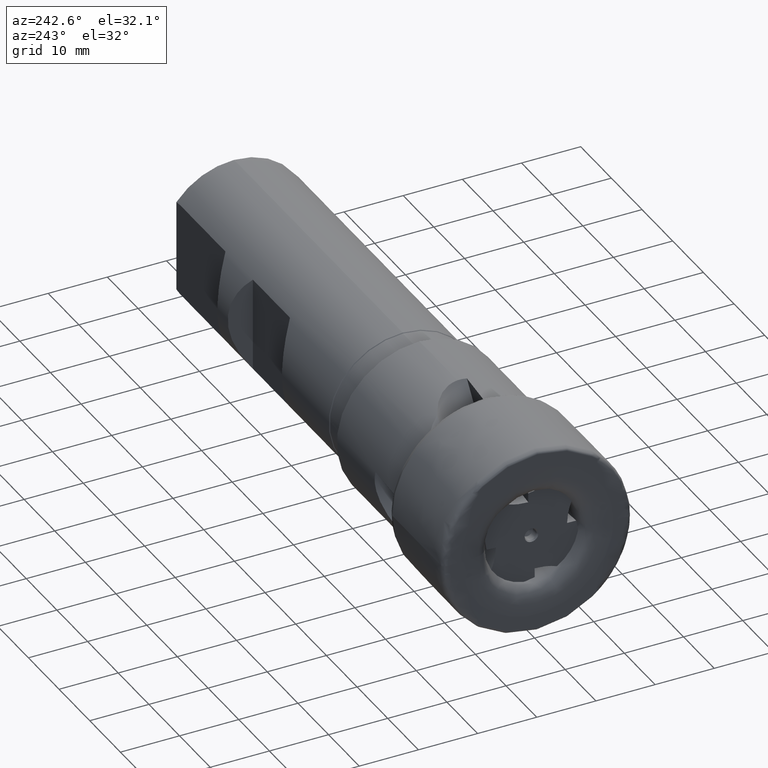
[diagram: clean part render]
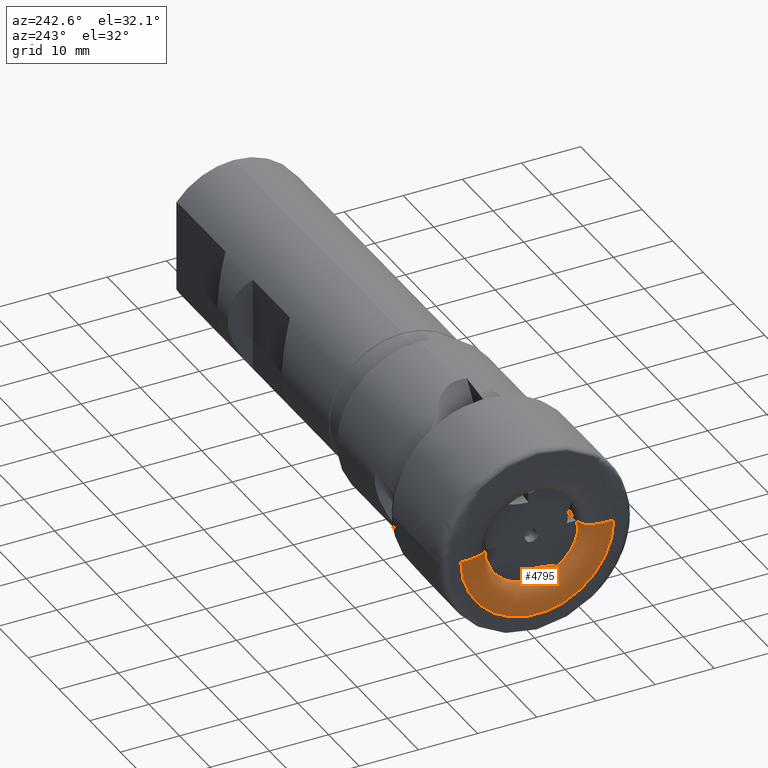
[diagram: same view with one face highlighted and labeled with its STEP entity id]
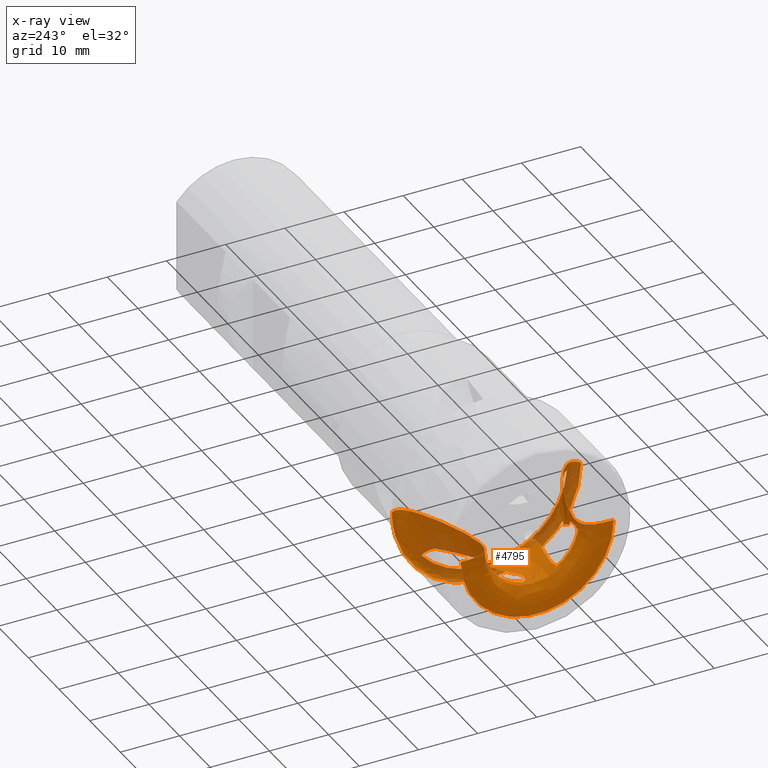
[diagram: x-ray of the same camera — body ghosted, the highlighted face saturated]
A machine part, auxiliary view. The second image highlights one B-rep face of the part: STEP entity #4795.
The next image is the same camera in x-ray: the body ghosted, the highlighted face saturated — about 19% of this face is hidden behind the body in this view.
In plain terms, the highlighted face is a freeform B-spline surface patch.
Its self-contained STEP definition (entity closure, byte-faithful):
#3 = B_SPLINE_CURVE_WITH_KNOTS ( 'NONE', 3,
 ( #1766, #1794, #1788, #1786, #1783, #1779, #1793, #1791, #1785, #1765 ),
 .UNSPECIFIED., .F., .F.,
 ( 4, 2, 2, 2, 4 ),
 ( 3.696389960674472100E-005, 0.0004241432186873470200, 0.0008113225377679492700, 0.001198501856848550700, 0.001585681175929152100 ),
 .UNSPECIFIED. ) ;
#4 = B_SPLINE_CURVE_WITH_KNOTS ( 'NONE', 3,
 ( #1676, #1660, #1740, #1735, #1733, #1755, #1752, #1805, #1787, #1798, #1741, #1728 ),
 .UNSPECIFIED., .F., .F.,
 ( 4, 2, 2, 2, 2, 4 ),
 ( 0.001695614027057323400, 0.002424153440067413100, 0.003152692853077503100, 0.004609771679097678600, 0.006066850505117854200, 0.007523929331138030600 ),
 .UNSPECIFIED. ) ;
#5 = B_SPLINE_CURVE_WITH_KNOTS ( 'NONE', 3,
 ( #1721, #1790, #1753, #1770, #1652, #1672, #1699, #1674, #1714, #1722, #1655, #1690, #1691, #1651, #1650, #1683 ),
 .UNSPECIFIED., .F., .F.,
 ( 4, 2, 2, 2, 2, 2, 2, 4 ),
 ( 0.001459482907623671500, 0.002005278338026185300, 0.002551073768428699200, 0.003642664629233727100, 0.004734255490038754100, 0.005825846350843782000, 0.008009028072453837700, 0.01019220979406389500 ),
 .UNSPECIFIED. ) ;
#8 = B_SPLINE_CURVE_WITH_KNOTS ( 'NONE', 3,
 ( #1718, #1645, #1644, #1698, #1687, #1712 ),
 .UNSPECIFIED., .F., .F.,
 ( 4, 2, 4 ),
 ( 0.002813665986414795200, 0.003086484294169958800, 0.003359302601925121900 ),
 .UNSPECIFIED. ) ;
#9 = B_SPLINE_CURVE_WITH_KNOTS ( 'NONE', 3,
 ( #1743, #1685, #1763, #1663, #1669, #1679 ),
 .UNSPECIFIED., .F., .F.,
 ( 4, 2, 4 ),
 ( 3.572740805686674300E-016, 0.002368259885442461700, 0.004736519770884566000 ),
 .UNSPECIFIED. ) ;
#13 = B_SPLINE_CURVE_WITH_KNOTS ( 'NONE', 3,
 ( #1801, #1697, #1806, #1780 ),
 .UNSPECIFIED., .F., .F.,
 ( 4, 4 ),
 ( 0.001585681175929152100, 0.001648896588528597300 ),
 .UNSPECIFIED. ) ;
#14 = B_SPLINE_CURVE_WITH_KNOTS ( 'NONE', 3,
 ( #3805, #3821, #3810, #3815, #3783, #3818 ),
 .UNSPECIFIED., .F., .F.,
 ( 4, 2, 4 ),
 ( 9.345383159293372200E-015, 0.002368259885446957700, 0.004736519770884569500 ),
 .UNSPECIFIED. ) ;
#15 = B_SPLINE_CURVE_WITH_KNOTS ( 'NONE', 3,
 ( #1762, #1764, #1797, #1802, #1799, #1803 ),
 .UNSPECIFIED., .F., .F.,
 ( 4, 2, 4 ),
 ( 7.350083589378113800E-005, 0.002127332326898164800, 0.004181163817902551100 ),
 .UNSPECIFIED. ) ;
#17 = B_SPLINE_CURVE_WITH_KNOTS ( 'NONE', 3,
 ( #1773, #1649, #1696, #1731, #1782, #1656, #1717, #1689 ),
 .UNSPECIFIED., .F., .F.,
 ( 4, 2, 2, 4 ),
 ( 0.003118339040815145000, 0.004084315830625417200, 0.005050292620435692900, 0.006982246200056246900 ),
 .UNSPECIFIED. ) ;
#21 = B_SPLINE_CURVE_WITH_KNOTS ( 'NONE', 3,
 ( #1693, #1738, #1659, #1796 ),
 .UNSPECIFIED., .F., .F.,
 ( 4, 4 ),
 ( 0.0000000000000000000, 0.0004602060734518489900 ),
 .UNSPECIFIED. ) ;
#22 = B_SPLINE_CURVE_WITH_KNOTS ( 'NONE', 3,
 ( #3794, #3819, #3813, #3822, #3809, #3800, #3773, #3778, #3787, #3786, #3791, #3795, #3798, #3808, #3788, #3785 ),
 .UNSPECIFIED., .F., .F.,
 ( 4, 2, 2, 2, 2, 2, 2, 4 ),
 ( 0.001459482907623683000, 0.002005278338026197000, 0.002551073768428710900, 0.003642664629233738800, 0.004734255490038766200, 0.005825846350843794100, 0.008009028072453849800, 0.01019220979406390700 ),
 .UNSPECIFIED. ) ;
#23 =( BOUNDED_CURVE ( )  B_SPLINE_CURVE ( 3, ( #3081, #3765, #3762, #3771, #3770, #3769, #3767, #3766, #3829 ),
 .UNSPECIFIED., .F., .T. ) 
 B_SPLINE_CURVE_WITH_KNOTS ( ( 4, 3, 1, 1, 4 ),
 ( 0.4999999999999998300, 0.5374124429672690900, 0.6916082953115126900, 0.8458041476557565100, 1.000000000000000000 ),
 .UNSPECIFIED. ) 
 CURVE ( )  GEOMETRIC_REPRESENTATION_ITEM ( )  RATIONAL_B_SPLINE_CURVE ( ( 0.9905340244787608200, 0.8371696116770038800, 0.8403249368507502700, 1.000000000000000000, 1.000000000000000000, 1.000000000000000000, 1.000000000000000000, 1.000000000000000000, 1.000000000000000000 ) ) 
 REPRESENTATION_ITEM ( '' )  );
#26 = B_SPLINE_CURVE_WITH_KNOTS ( 'NONE', 3,
 ( #1711, #1778, #1792, #1678 ),
 .UNSPECIFIED., .F., .F.,
 ( 4, 4 ),
 ( 0.002706554292148836700, 0.003950145044846595600 ),
 .UNSPECIFIED. ) ;
#29 = B_SPLINE_CURVE_WITH_KNOTS ( 'NONE', 3,
 ( #5731, #5783, #5809, #5869, #5819, #5795, #5833, #1707, #1642, #1688, #1643, #1666 ),
 .UNSPECIFIED., .F., .F.,
 ( 4, 2, 2, 2, 2, 4 ),
 ( 8.683664881434645300E-005, 0.0007108188029513063500, 0.001334800957088266200, 0.001646792034156745600, 0.001958783111225224700, 0.002582765265362183100 ),
 .UNSPECIFIED. ) ;
#30 = B_SPLINE_CURVE_WITH_KNOTS ( 'NONE', 3,
 ( #5547, #5509, #5548, #5546, #5543, #5541, #5540, #5528 ),
 .UNSPECIFIED., .F., .F.,
 ( 4, 2, 2, 4 ),
 ( 0.0002914772496509638600, 0.0007541557286104979500, 0.001216834207570032100, 0.002142191165489101900 ),
 .UNSPECIFIED. ) ;
#39 = B_SPLINE_CURVE_WITH_KNOTS ( 'NONE', 3,
 ( #1769, #1795, #1709, #1767 ),
 .UNSPECIFIED., .F., .F.,
 ( 4, 4 ),
 ( 0.003681822430684622500, 0.005338997128617969400 ),
 .UNSPECIFIED. ) ;
#41 = B_SPLINE_CURVE_WITH_KNOTS ( 'NONE', 3,
 ( #1677, #1646, #1708, #1658, #1725, #1704 ),
 .UNSPECIFIED., .F., .F.,
 ( 4, 2, 4 ),
 ( 0.003764476278825431200, 0.004597277886860119500, 0.005430079494894807400 ),
 .UNSPECIFIED. ) ;
#70 = EDGE_LOOP ( 'NONE', ( #5357, #5342, #5290, #5281, #5327, #5323, #5275, #5277, #5298, #5310, #5344, #5345, #5346, #5267, #5262, #5304, #5292, #5297 ) ) ;
#196 = CIRCLE ( 'NONE', #4655, 14.00000000000000000 ) ;
#200 = CIRCLE ( 'NONE', #4659, 7.986440137444374100 ) ;
#205 = CIRCLE ( 'NONE', #4661, 7.986440137444374100 ) ;
#1642 = CARTESIAN_POINT ( 'NONE',  ( 1.906165339882337100, -7.794542437987201000, -0.9038683548771031500 ) ) ;
#1643 = CARTESIAN_POINT ( 'NONE',  ( 1.406626987787355200, -7.821282960621283000, -1.054608241863550500 ) ) ;
#1644 = CARTESIAN_POINT ( 'NONE',  ( 9.795127822885639500, -9.262106075405650800, -3.670359644845549800 ) ) ;
#1645 = CARTESIAN_POINT ( 'NONE',  ( 9.877139531221352800, -9.286699370879279800, -3.700064216685750000 ) ) ;
#1646 = CARTESIAN_POINT ( 'NONE',  ( 9.944786059326506900, -9.206983293434792200, -3.975815873334451300 ) ) ;
#1649 = CARTESIAN_POINT ( 'NONE',  ( 16.20556702002544800, 10.58134357214866300, -8.822539238722594500 ) ) ;
#1650 = CARTESIAN_POINT ( 'NONE',  ( 8.675083368943617800, 7.831417433516723000, -5.398720048212682700 ) ) ;
#1651 = CARTESIAN_POINT ( 'NONE',  ( 8.000000358855277900, 7.658495359194434500, -5.201941911789555600 ) ) ;
#1652 = CARTESIAN_POINT ( 'NONE',  ( 1.886965584084154400, 6.752916393983394300, -3.993917235771486100 ) ) ;
#1655 = CARTESIAN_POINT ( 'NONE',  ( 4.916691766964939700, 7.030072408021109000, -4.358644458714529400 ) ) ;
#1656 = CARTESIAN_POINT ( 'NONE',  ( 14.66005063134746100, 10.05440645365803400, -7.299552367996490400 ) ) ;
#1658 = CARTESIAN_POINT ( 'NONE',  ( 9.733962755520984400, -8.771637415552127900, -4.678589722952730200 ) ) ;
#1659 = CARTESIAN_POINT ( 'NONE',  ( 1.155625834011727600, -7.837953251589386400, -1.301521394099550000 ) ) ;
#1660 = CARTESIAN_POINT ( 'NONE',  ( 16.21784035497658400, 0.7866954455813159900, -13.77220418627727100 ) ) ;
#1662 = CARTESIAN_POINT ( 'NONE',  ( 16.35082059415270800, 0.0000000000000000000, 0.0000000000000000000 ) ) ;
#1663 = CARTESIAN_POINT ( 'NONE',  ( 10.81024475476628600, 8.482316226237811600, -5.994720712376315300 ) ) ;
#1666 = CARTESIAN_POINT ( 'NONE',  ( 1.232887749916024000, -7.841300139547233700, -1.168630262438838500 ) ) ;
#1669 = CARTESIAN_POINT ( 'NONE',  ( 10.08310654343256700, 8.232161918622415100, -5.809627812334068300 ) ) ;
#1672 = CARTESIAN_POINT ( 'NONE',  ( 2.434869936539695500, 6.761062987043778200, -3.967939254815660000 ) ) ;
#1674 = CARTESIAN_POINT ( 'NONE',  ( 3.511668857989276300, 6.843576710799771600, -4.073125936140160200 ) ) ;
#1676 = CARTESIAN_POINT ( 'NONE',  ( 16.35082059415270800, 0.7983297089821997900, -13.97721966900987100 ) ) ;
#1677 = CARTESIAN_POINT ( 'NONE',  ( 9.961858758386542300, -9.317228335800678000, -3.718790766092941300 ) ) ;
#1678 = CARTESIAN_POINT ( 'NONE',  ( 5.623905422683043800, -7.878803517215631700, -3.109665431587843800 ) ) ;
#1679 = CARTESIAN_POINT ( 'NONE',  ( 9.346339155191316200, 8.022466884483098000, -5.594614703413014900 ) ) ;
#1681 = DIRECTION ( 'NONE',  ( 0.0000000000000000000, 0.0000000000000000000, 1.000000000000000000 ) ) ;
#1683 = CARTESIAN_POINT ( 'NONE',  ( 9.346339155191316200, 8.022466884483098000, -5.594614703413014900 ) ) ;
#1685 = CARTESIAN_POINT ( 'NONE',  ( 12.94330843479046700, 9.398962272422100000, -6.464646237600317300 ) ) ;
#1687 = CARTESIAN_POINT ( 'NONE',  ( 9.561391576930319000, -9.212648001796653200, -3.534445269104261800 ) ) ;
#1688 = CARTESIAN_POINT ( 'NONE',  ( 1.601573669215425200, -7.805989385427900600, -0.9678602817202837100 ) ) ;
#1689 = CARTESIAN_POINT ( 'NONE',  ( 13.62731220597918200, 9.783410505144665600, -6.598092078970812400 ) ) ;
#1690 = CARTESIAN_POINT ( 'NONE',  ( 5.957532790907008800, 7.206828936093233800, -4.619265667843197100 ) ) ;
#1691 = CARTESIAN_POINT ( 'NONE',  ( 6.641262659919320300, 7.345984573493438100, -4.812254378706336800 ) ) ;
#1693 = CARTESIAN_POINT ( 'NONE',  ( 1.000000000000000000, -7.831250987378521000, -1.566759088585529100 ) ) ;
#1696 = CARTESIAN_POINT ( 'NONE',  ( 16.01851577236773800, 10.51149209904923200, -8.569633307122563400 ) ) ;
#1697 = CARTESIAN_POINT ( 'NONE',  ( 4.621229542472014500, -7.865484113142988700, -2.318288295409047800 ) ) ;
#1698 = CARTESIAN_POINT ( 'NONE',  ( 9.637010727110784100, -9.224925359836071000, -3.587673426509182300 ) ) ;
#1699 = CARTESIAN_POINT ( 'NONE',  ( 2.797666934601923800, 6.782609225965211800, -3.990300048969163300 ) ) ;
#1703 = DIRECTION ( 'NONE',  ( 1.000000000000000000, 0.0000000000000000000, 0.0000000000000000000 ) ) ;
#1704 = CARTESIAN_POINT ( 'NONE',  ( 9.582609126359681500, -8.446890704283315900, -5.116961288114184800 ) ) ;
#1707 = CARTESIAN_POINT ( 'NONE',  ( 2.011668578813153200, -7.792525863732714200, -0.8929013161903106600 ) ) ;
#1708 = CARTESIAN_POINT ( 'NONE',  ( 9.876542173941528400, -9.067054642976813700, -4.217983015829434900 ) ) ;
#1709 = CARTESIAN_POINT ( 'NONE',  ( 11.43302409475034600, 0.8870847868606146500, -10.65139429608753100 ) ) ;
#1711 = CARTESIAN_POINT ( 'NONE',  ( 4.662393956077301600, -7.876512075273336900, -2.316552428874413000 ) ) ;
#1712 = CARTESIAN_POINT ( 'NONE',  ( 9.494010205241842500, -9.207277102033979000, -3.471495896194975100 ) ) ;
#1714 = CARTESIAN_POINT ( 'NONE',  ( 3.864942367450184200, 6.883409024551517600, -4.134258996294867000 ) ) ;
#1717 = CARTESIAN_POINT ( 'NONE',  ( 14.14757574892707700, 9.908342048485145900, -6.947934471836404700 ) ) ;
#1718 = CARTESIAN_POINT ( 'NONE',  ( 9.961858758386542300, -9.317228335800678000, -3.718790766092941300 ) ) ;
#1719 = DIRECTION ( 'NONE',  ( 0.0000000000000000000, -1.776356839400250500E-015, 1.000000000000000000 ) ) ;
#1721 = CARTESIAN_POINT ( 'NONE',  ( 0.9999999999999950000, 6.801715402263384100, -4.185677203941503800 ) ) ;
#1722 = CARTESIAN_POINT ( 'NONE',  ( 4.567256134231514300, 6.976572394314541900, -4.276842875398895800 ) ) ;
#1725 = CARTESIAN_POINT ( 'NONE',  ( 9.656533617623615800, -8.613445388822809100, -4.900013537799639000 ) ) ;
#1728 = CARTESIAN_POINT ( 'NONE',  ( 11.63658361730729100, 0.3858874163334726800, -10.76511612045552700 ) ) ;
#1729 = DIRECTION ( 'NONE',  ( 1.000000000000000000, 0.0000000000000000000, 0.0000000000000000000 ) ) ;
#1731 = CARTESIAN_POINT ( 'NONE',  ( 15.59956464288674200, 10.36205447104710400, -8.103108731121176700 ) ) ;
#1733 = CARTESIAN_POINT ( 'NONE',  ( 15.53871772960319400, 0.7272799147171764600, -13.08485413658418900 ) ) ;
#1735 = CARTESIAN_POINT ( 'NONE',  ( 15.72160496527989400, 0.7432804745424953500, -13.24576967196384400 ) ) ;
#1738 = CARTESIAN_POINT ( 'NONE',  ( 1.077234844022652000, -7.834597666812178400, -1.433854578999600400 ) ) ;
#1740 = CARTESIAN_POINT ( 'NONE',  ( 16.06041003617344400, 0.7729220773907807800, -13.58945681742071300 ) ) ;
#1741 = CARTESIAN_POINT ( 'NONE',  ( 12.07128493366939100, 0.4239188535349544000, -10.96823944706111400 ) ) ;
#1743 = CARTESIAN_POINT ( 'NONE',  ( 13.62731220597918200, 9.783410505144665600, -6.598092078970812400 ) ) ;
#1752 = CARTESIAN_POINT ( 'NONE',  ( 14.57928413273223900, 0.6433403515850656400, -12.36278524797339000 ) ) ;
#1753 = CARTESIAN_POINT ( 'NONE',  ( 1.348828362107482600, 6.768415720083229600, -4.076772692433548800 ) ) ;
#1755 = CARTESIAN_POINT ( 'NONE',  ( 14.97565566200832900, 0.6780183669411549200, -12.63079233356369700 ) ) ;
#1762 = CARTESIAN_POINT ( 'NONE',  ( 9.494010205241842500, -9.207277102033979000, -3.471495896194975100 ) ) ;
#1763 = CARTESIAN_POINT ( 'NONE',  ( 12.24009413570976800, 9.066111735760484800, -6.322609388863122100 ) ) ;
#1764 = CARTESIAN_POINT ( 'NONE',  ( 8.859134111370345000, -8.955645509489571100, -3.411550728472654700 ) ) ;
#1765 = CARTESIAN_POINT ( 'NONE',  ( 4.600659726344105100, -7.860309510885248800, -2.318205059195970200 ) ) ;
#1766 = CARTESIAN_POINT ( 'NONE',  ( 3.596196646526608600, -7.869895641575489300, -1.346941464099033800 ) ) ;
#1767 = CARTESIAN_POINT ( 'NONE',  ( 11.63658361730729100, 0.3858874163334726800, -10.76511612045552700 ) ) ;
#1769 = CARTESIAN_POINT ( 'NONE',  ( 11.03198719069120800, 1.859357598834422000, -10.32839534769507100 ) ) ;
#1770 = CARTESIAN_POINT ( 'NONE',  ( 1.706052860641938700, 6.754349810747996200, -4.012608673255992500 ) ) ;
#1773 = CARTESIAN_POINT ( 'NONE',  ( 16.35082059415277600, 10.63530775963411300, -9.104407111825967300 ) ) ;
#1778 = CARTESIAN_POINT ( 'NONE',  ( 4.976619063714228000, -7.877053785878162600, -2.588621787787774900 ) ) ;
#1779 = CARTESIAN_POINT ( 'NONE',  ( 3.996407066364124900, -7.775051467065803300, -2.124189888067950200 ) ) ;
#1780 = CARTESIAN_POINT ( 'NONE',  ( 4.662393956077301600, -7.876512075273336900, -2.316552428874413000 ) ) ;
#1782 = CARTESIAN_POINT ( 'NONE',  ( 15.37193568958516500, 10.28397488516310100, -7.893651259229034000 ) ) ;
#1783 = CARTESIAN_POINT ( 'NONE',  ( 3.810738691242361800, -7.784111130501169200, -1.945028498303698900 ) ) ;
#1785 = CARTESIAN_POINT ( 'NONE',  ( 4.474674510484153900, -7.828616306707978400, -2.317695257250889500 ) ) ;
#1786 = CARTESIAN_POINT ( 'NONE',  ( 3.734938858961169800, -7.796400997035495300, -1.836842347434446000 ) ) ;
#1787 = CARTESIAN_POINT ( 'NONE',  ( 13.34957880853771300, 0.5357550762405629600, -11.62584703057307100 ) ) ;
#1788 = CARTESIAN_POINT ( 'NONE',  ( 3.630264351908232300, -7.828773915436345400, -1.602132012986942500 ) ) ;
#1790 = CARTESIAN_POINT ( 'NONE',  ( 1.170854201105921100, 6.781199074059952800, -4.122817899761357400 ) ) ;
#1791 = CARTESIAN_POINT ( 'NONE',  ( 4.346258161361125100, -7.805130857161768400, -2.292821081383053600 ) ) ;
#1792 = CARTESIAN_POINT ( 'NONE',  ( 5.297926862208755400, -7.877846039732556700, -2.852007030020294200 ) ) ;
#1793 = CARTESIAN_POINT ( 'NONE',  ( 4.108152741927319200, -7.778470445418705000, -2.196601487983656400 ) ) ;
#1794 = CARTESIAN_POINT ( 'NONE',  ( 3.600814584729189700, -7.848735959159755600, -1.475305090125832700 ) ) ;
#1795 = CARTESIAN_POINT ( 'NONE',  ( 11.22700391151090400, 1.376001839079052300, -10.50432245680715600 ) ) ;
#1796 = CARTESIAN_POINT ( 'NONE',  ( 1.232887749916024000, -7.841300139547233700, -1.168630262438838500 ) ) ;
#1797 = CARTESIAN_POINT ( 'NONE',  ( 8.219559493730317400, -8.718014612547202400, -3.351438813618939200 ) ) ;
#1798 = CARTESIAN_POINT ( 'NONE',  ( 12.50223254737841400, 0.4616218843080440200, -11.18007386308366000 ) ) ;
#1799 = CARTESIAN_POINT ( 'NONE',  ( 6.281754029132023300, -8.061981448215041400, -3.170425876780703400 ) ) ;
#1801 = CARTESIAN_POINT ( 'NONE',  ( 4.600659726344105100, -7.860309510885248800, -2.318205059195970200 ) ) ;
#1802 = CARTESIAN_POINT ( 'NONE',  ( 6.930931609798135700, -8.270997365468087300, -3.230878593685528400 ) ) ;
#1803 = CARTESIAN_POINT ( 'NONE',  ( 5.623905422683043800, -7.878803517215631700, -3.109665431587843800 ) ) ;
#1805 = CARTESIAN_POINT ( 'NONE',  ( 13.76657118348292000, 0.5722371818250269200, -11.85977469002547100 ) ) ;
#1806 = CARTESIAN_POINT ( 'NONE',  ( 4.641807412788431000, -7.870885092742958600, -2.317739368806494700 ) ) ;
#1808 = CARTESIAN_POINT ( 'NONE',  ( 0.9999999999999983300, 0.0000000000000000000, 0.0000000000000000000 ) ) ;
#2422 = AXIS2_PLACEMENT_3D ( 'NONE', #3277, #3278, #3279 ) ;
#2428 = AXIS2_PLACEMENT_3D ( 'NONE', #3476, #3477, #3478 ) ;
#2432 = AXIS2_PLACEMENT_3D ( 'NONE', #3518, #3519, #3520 ) ;
#2544 = FACE_OUTER_BOUND ( 'NONE', #3759, .T. ) ;
#2549 = FACE_BOUND ( 'NONE', #70, .T. ) ;
#2554 = FACE_BOUND ( 'NONE', #3745, .T. ) ;
#2562 = CIRCLE ( 'NONE', #2422, 15.95837609584169100 ) ;
#2581 = CIRCLE ( 'NONE', #2428, 12.93071601396393400 ) ;
#2594 = CIRCLE ( 'NONE', #2432, 14.00000000000000000 ) ;
#2797 = CARTESIAN_POINT ( 'NONE',  ( 15.61958193997870300, 15.95837609584169500, 1.954337420536217000E-015 ) ) ;
#2803 = CARTESIAN_POINT ( 'NONE',  ( 15.61958193997870300, 15.95837609584170000, -31.91675219168338600 ) ) ;
#2804 = CARTESIAN_POINT ( 'NONE',  ( 15.61958193997870300, -15.95837609584169000, -31.91675219168339000 ) ) ;
#2805 = CARTESIAN_POINT ( 'NONE',  ( 15.61958193997870300, -15.95837609584169500, -3.908674841072434700E-015 ) ) ;
#2806 = CARTESIAN_POINT ( 'NONE',  ( 16.19201686794975700, 15.90963096352389000, 1.948367863509515700E-015 ) ) ;
#2807 = CARTESIAN_POINT ( 'NONE',  ( 16.19201686794975700, 15.90963096352389500, -31.81926192704776600 ) ) ;
#2808 = CARTESIAN_POINT ( 'NONE',  ( 16.19201686794975700, -15.90963096352388300, -31.81926192704777300 ) ) ;
#2809 = CARTESIAN_POINT ( 'NONE',  ( 16.19201686794975700, -15.90963096352389000, -3.896735727019031400E-015 ) ) ;
#2810 = CARTESIAN_POINT ( 'NONE',  ( 16.59424611425123800, 15.50738991509868300, 1.899107542265554700E-015 ) ) ;
#2811 = CARTESIAN_POINT ( 'NONE',  ( 16.59424611425123400, 15.50738991509868600, -31.01477983019735500 ) ) ;
#2812 = CARTESIAN_POINT ( 'NONE',  ( 16.59424611425123400, -15.50738991509867800, -31.01477983019736200 ) ) ;
#2813 = CARTESIAN_POINT ( 'NONE',  ( 16.59424611425123800, -15.50738991509868300, -3.798215084531109500E-015 ) ) ;
#2814 = CARTESIAN_POINT ( 'NONE',  ( 16.63901039298782100, 14.94387512476231400, 1.830096883839792000E-015 ) ) ;
#2815 = CARTESIAN_POINT ( 'NONE',  ( 16.63901039298782100, 14.94387512476231600, -29.88775024952461500 ) ) ;
#2816 = CARTESIAN_POINT ( 'NONE',  ( 16.63901039298782100, -14.94387512476230600, -29.88775024952462200 ) ) ;
#2817 = CARTESIAN_POINT ( 'NONE',  ( 16.63901039298782100, -14.94387512476231400, -3.660193767679583900E-015 ) ) ;
#2818 = CARTESIAN_POINT ( 'NONE',  ( 16.79404743258294600, 12.99219250353847400, 1.591084696336463100E-015 ) ) ;
#2819 = CARTESIAN_POINT ( 'NONE',  ( 16.79404743258294300, 12.99219250353848000, -25.98438500707694100 ) ) ;
#2820 = CARTESIAN_POINT ( 'NONE',  ( 16.79404743258294300, -12.99219250353846900, -25.98438500707694800 ) ) ;
#2821 = CARTESIAN_POINT ( 'NONE',  ( 16.79404743258294600, -12.99219250353847400, -3.182169392672926100E-015 ) ) ;
#2822 = CARTESIAN_POINT ( 'NONE',  ( 6.638849280949029800, 8.257490850354775700, 1.011250973887553100E-015 ) ) ;
#2823 = CARTESIAN_POINT ( 'NONE',  ( 6.638849280949028900, 8.257490850354777500, -16.51498170070954800 ) ) ;
#2824 = CARTESIAN_POINT ( 'NONE',  ( 6.638849280949028900, -8.257490850354772100, -16.51498170070955100 ) ) ;
#2825 = CARTESIAN_POINT ( 'NONE',  ( 6.638849280949029800, -8.257490850354775700, -2.022501947775106200E-015 ) ) ;
#2826 = CARTESIAN_POINT ( 'NONE',  ( -0.7966021102602431900, 7.057634559788922100, 8.643109573197242400E-016 ) ) ;
#2827 = CARTESIAN_POINT ( 'NONE',  ( -0.7966021102602431900, 7.057634559788923800, -14.11526911957784100 ) ) ;
#2828 = CARTESIAN_POINT ( 'NONE',  ( -0.7966021102602431900, -7.057634559788918500, -14.11526911957784200 ) ) ;
#2829 = CARTESIAN_POINT ( 'NONE',  ( -0.7966021102602431900, -7.057634559788922100, -1.728621914639448500E-015 ) ) ;
#2830 = CARTESIAN_POINT ( 'NONE',  ( -0.8429249931477903500, 10.97302219590559400, 1.343807650918864900E-015 ) ) ;
#2831 = CARTESIAN_POINT ( 'NONE',  ( -0.8429249931477903500, 10.97302219590559800, -21.94604439181118500 ) ) ;
#2832 = CARTESIAN_POINT ( 'NONE',  ( -0.8429249931477903500, -10.97302219590559100, -21.94604439181118800 ) ) ;
#2833 = CARTESIAN_POINT ( 'NONE',  ( -0.8429249931477903500, -10.97302219590559400, -2.687615301837729700E-015 ) ) ;
#2834 = CARTESIAN_POINT ( 'NONE',  ( -0.8660864345915640900, 12.93071601396393400, 1.583555997718435400E-015 ) ) ;
#2835 = CARTESIAN_POINT ( 'NONE',  ( -0.8660864345915640900, 12.93071601396393800, -25.86143202792786200 ) ) ;
#2836 = CARTESIAN_POINT ( 'NONE',  ( -0.8660864345915640900, -12.93071601396392700, -25.86143202792786500 ) ) ;
#2837 = CARTESIAN_POINT ( 'NONE',  ( -0.8660864345915640900, -12.93071601396393400, -3.167111995436870700E-015 ) ) ;
#3015 = CARTESIAN_POINT ( 'NONE',  ( 9.346339155191316200, 8.022466884483098000, -5.594614703413014900 ) ) ;
#3016 = CARTESIAN_POINT ( 'NONE',  ( 9.582609126359662000, 4.968763380423003400, -8.534907490039595100 ) ) ;
#3044 = CARTESIAN_POINT ( 'NONE',  ( 16.35082059415277600, 10.63530775963411300, -9.104407111825967300 ) ) ;
#3046 = CARTESIAN_POINT ( 'NONE',  ( 1.000000000000000000, 1.429846288443505500, -7.857401966324926200 ) ) ;
#3048 = CARTESIAN_POINT ( 'NONE',  ( 11.63658361730729100, 0.3858874163334726800, -10.76511612045552700 ) ) ;
#3062 = CARTESIAN_POINT ( 'NONE',  ( 11.01862978513252300, 5.181432630331944900, -9.119211451976749300 ) ) ;
#3072 = CARTESIAN_POINT ( 'NONE',  ( 9.582609126359681500, -8.446890704283315900, -5.116961288114184800 ) ) ;
#3074 = CARTESIAN_POINT ( 'NONE',  ( 3.596196646526608600, -7.869895641575489300, -1.346941464099033800 ) ) ;
#3076 = CARTESIAN_POINT ( 'NONE',  ( 5.623905422683043800, -7.878803517215631700, -3.109665431587843800 ) ) ;
#3078 = CARTESIAN_POINT ( 'NONE',  ( 9.494010205241842500, -9.207277102033979000, -3.471495896194975100 ) ) ;
#3080 = CARTESIAN_POINT ( 'NONE',  ( 4.662393956077301600, -7.876512075273336900, -2.316552428874413000 ) ) ;
#3081 = CARTESIAN_POINT ( 'NONE',  ( 15.61958193997870300, -15.95837609584168800, 0.0000000000000000000 ) ) ;
#3092 = CARTESIAN_POINT ( 'NONE',  ( 9.961858758386542300, 3.555616320461562300, -9.380711124701184300 ) ) ;
#3094 = CARTESIAN_POINT ( 'NONE',  ( 4.600659726344105100, -7.860309510885248800, -2.318205059195970200 ) ) ;
#3104 = CARTESIAN_POINT ( 'NONE',  ( -0.8660864345915644200, 12.93071601396393400, 1.771639933050775100E-015 ) ) ;
#3109 = CARTESIAN_POINT ( 'NONE',  ( 13.62731220597918200, 9.783410505144665600, -6.598092078970812400 ) ) ;
#3110 = CARTESIAN_POINT ( 'NONE',  ( 11.03198719069120800, 1.859357598834422000, -10.32839534769507100 ) ) ;
#3114 = CARTESIAN_POINT ( 'NONE',  ( -0.8660864345915640900, -12.93071601396393400, 0.0000000000000000000 ) ) ;
#3122 = CARTESIAN_POINT ( 'NONE',  ( 3.596196646526607800, 1.209387701034256000, -7.892204388229260700 ) ) ;
#3123 = CARTESIAN_POINT ( 'NONE',  ( 10.55355858804222500, 3.493779510597516200, -9.671721439881347100 ) ) ;
#3124 = CARTESIAN_POINT ( 'NONE',  ( 13.62731220598914600, -6.767831214066341700, -9.666767859667313400 ) ) ;
#3129 = CARTESIAN_POINT ( 'NONE',  ( 1.232887749916024500, 1.031602717357402300, -7.860501281870779300 ) ) ;
#3135 = CARTESIAN_POINT ( 'NONE',  ( 15.61958193997870300, -15.95837609584169100, 0.0000000000000000000 ) ) ;
#3142 = CARTESIAN_POINT ( 'NONE',  ( 5.623905422682169900, 2.971687733258615300, -7.931874682274136400 ) ) ;
#3144 = CARTESIAN_POINT ( 'NONE',  ( 9.494010205241844200, 3.310278028390058600, -9.266460746460621700 ) ) ;
#3145 = CARTESIAN_POINT ( 'NONE',  ( 9.961858758386542300, -9.317228335800678000, -3.718790766092941300 ) ) ;
#3146 = CARTESIAN_POINT ( 'NONE',  ( 0.9999999999999950000, 6.801715402263384100, -4.185677203941503800 ) ) ;
#3152 = CARTESIAN_POINT ( 'NONE',  ( 16.35082059415270800, -13.96115809620198400, -1.042144238027430400 ) ) ;
#3153 = CARTESIAN_POINT ( 'NONE',  ( 1.000000000000000000, -7.831250987378521000, -1.566759088585529100 ) ) ;
#3162 = CARTESIAN_POINT ( 'NONE',  ( 11.03198719069120800, -10.29437201852980600, -2.039329763119003000 ) ) ;
#3163 = CARTESIAN_POINT ( 'NONE',  ( 9.346339155191319700, -5.733773969193230800, -7.923605534254917900 ) ) ;
#3165 = CARTESIAN_POINT ( 'NONE',  ( 10.96439558220092400, -10.22878403136699700, -2.207004295407776400 ) ) ;
#3176 = CARTESIAN_POINT ( 'NONE',  ( 0.9999999999999985600, -4.303746006700609300, -6.727629328284299600 ) ) ;
#3179 = CARTESIAN_POINT ( 'NONE',  ( 16.35082059415276800, -9.288632180131411800, -10.47479413746293800 ) ) ;
#3183 = CARTESIAN_POINT ( 'NONE',  ( 1.232887749916024000, -7.841300139547233700, -1.168630262438838500 ) ) ;
#3218 = CARTESIAN_POINT ( 'NONE',  ( 4.662393956077289100, 2.178735516673208700, -7.915741858855515300 ) ) ;
#3222 = CARTESIAN_POINT ( 'NONE',  ( 11.01862978513251800, -9.027394083710783300, -5.339795657692909500 ) ) ;
#3224 = CARTESIAN_POINT ( 'NONE',  ( 11.63658361730726700, -10.75674187709947700, -0.5737058256895799500 ) ) ;
#3234 = CARTESIAN_POINT ( 'NONE',  ( 15.61958193997870300, 15.95837609584169100, 1.954337420536446100E-015 ) ) ;
#3236 = CARTESIAN_POINT ( 'NONE',  ( 10.55355858804220900, -9.609273529838821700, -3.662042204572522900 ) ) ;
#3237 = CARTESIAN_POINT ( 'NONE',  ( 11.12891629381884300, -10.17263665584408000, -2.751085380631979900 ) ) ;
#3268 = CARTESIAN_POINT ( 'NONE',  ( 10.96439558220092900, 2.028151261689151500, -10.26574367398706800 ) ) ;
#3269 = CARTESIAN_POINT ( 'NONE',  ( 16.35082059415270800, 0.7983297089821997900, -13.97721966900987100 ) ) ;
#3274 = CARTESIAN_POINT ( 'NONE',  ( 11.12891629381884300, -10.17263665584408000, -2.751085380631979900 ) ) ;
#3275 = CARTESIAN_POINT ( 'NONE',  ( 9.494010205241844200, 3.310278028390058600, -9.266460746460621700 ) ) ;
#3276 = CARTESIAN_POINT ( 'NONE',  ( 8.859134111370208200, 3.254733567432668700, -9.013821291195485600 ) ) ;
#3277 = CARTESIAN_POINT ( 'NONE',  ( 15.61958193997870300, 0.0000000000000000000, 0.0000000000000000000 ) ) ;
#3278 = DIRECTION ( 'NONE',  ( -1.000000000000000000, -0.0000000000000000000, -0.0000000000000000000 ) ) ;
#3279 = DIRECTION ( 'NONE',  ( 0.0000000000000000000, -1.000000000000000000, 0.0000000000000000000 ) ) ;
#3280 = CARTESIAN_POINT ( 'NONE',  ( 11.13166975239532300, -10.11807906442210500, -2.957588675360782300 ) ) ;
#3281 = CARTESIAN_POINT ( 'NONE',  ( 8.219559493730056200, 3.198778038910228300, -8.775177489019913700 ) ) ;
#3282 = CARTESIAN_POINT ( 'NONE',  ( 6.930931609797612600, 3.086037707562735200, -8.326124258874179100 ) ) ;
#3283 = CARTESIAN_POINT ( 'NONE',  ( 6.281754029131358900, 3.029242028639245200, -8.116085130372031400 ) ) ;
#3284 = CARTESIAN_POINT ( 'NONE',  ( 5.623905422682169900, 2.971687733258615300, -7.931874682274136400 ) ) ;
#3285 = CARTESIAN_POINT ( 'NONE',  ( 1.077235774946382600, 1.296902010869446900, -7.858428644899022200 ) ) ;
#3286 = CARTESIAN_POINT ( 'NONE',  ( 11.07125346803465300, -10.02985704915967000, -3.151948276239411800 ) ) ;
#3287 = CARTESIAN_POINT ( 'NONE',  ( 10.86594692287657400, -9.828263354825042000, -3.466798582913292100 ) ) ;
#3288 = CARTESIAN_POINT ( 'NONE',  ( 10.72117236173715900, -9.715043245841675600, -3.588591728154141100 ) ) ;
#3289 = CARTESIAN_POINT ( 'NONE',  ( 10.55355858804220900, -9.609273529838821700, -3.662042204572522900 ) ) ;
#3290 = CARTESIAN_POINT ( 'NONE',  ( 3.601003079345526500, 1.343354875350500500, -7.872516062609873800 ) ) ;
#3291 = CARTESIAN_POINT ( 'NONE',  ( 3.596196646526607800, 1.209387701034256000, -7.892204388229260700 ) ) ;
#3292 = CARTESIAN_POINT ( 'NONE',  ( 1.000000000000000000, 1.429846288443505500, -7.857401966324926200 ) ) ;
#3296 = CARTESIAN_POINT ( 'NONE',  ( 3.632797343141624500, 1.475789235171788100, -7.854063751952213400 ) ) ;
#3297 = CARTESIAN_POINT ( 'NONE',  ( 3.745441225676828400, 1.718654060870453500, -7.825328235570942100 ) ) ;
#3298 = CARTESIAN_POINT ( 'NONE',  ( 3.827209195186569900, 1.829942273269412800, -7.815147847165214000 ) ) ;
#3299 = CARTESIAN_POINT ( 'NONE',  ( 4.026068649149616300, 2.010283724251379100, -7.811506415057470700 ) ) ;
#3300 = CARTESIAN_POINT ( 'NONE',  ( 4.145215072060414800, 2.080983402350686400, -7.818280853111564200 ) ) ;
#3301 = CARTESIAN_POINT ( 'NONE',  ( 4.397444012150804000, 2.168882081295199400, -7.852547196025426500 ) ) ;
#3302 = CARTESIAN_POINT ( 'NONE',  ( 4.531159654525260400, 2.186926852660187000, -7.880008704005233800 ) ) ;
#3303 = CARTESIAN_POINT ( 'NONE',  ( 4.662393956077289100, 2.178735516673208700, -7.915741858855515300 ) ) ;
#3304 = CARTESIAN_POINT ( 'NONE',  ( 10.96439558220092400, -10.22878403136699700, -2.207004295407776400 ) ) ;
#3305 = CARTESIAN_POINT ( 'NONE',  ( 11.07007151460945600, -10.24176627811869600, -2.370545197562242900 ) ) ;
#3306 = CARTESIAN_POINT ( 'NONE',  ( 1.155624966683082900, 1.164533512544951900, -7.859474162171694400 ) ) ;
#3307 = CARTESIAN_POINT ( 'NONE',  ( 1.232887749916024500, 1.031602717357402300, -7.860501281870779300 ) ) ;
#3310 = CARTESIAN_POINT ( 'NONE',  ( 11.12641092915708700, -10.22227846369500300, -2.563188580015873400 ) ) ;
#3311 = CARTESIAN_POINT ( 'NONE',  ( 11.12891629381884300, -10.17263665584408000, -2.751085380631979900 ) ) ;
#3312 = CARTESIAN_POINT ( 'NONE',  ( 11.01862978513251800, -9.027394083710783300, -5.339795657692909500 ) ) ;
#3313 = CARTESIAN_POINT ( 'NONE',  ( 10.90976923501479600, -9.129986294248878300, -5.070504993541597100 ) ) ;
#3355 = CARTESIAN_POINT ( 'NONE',  ( 11.01862978513251800, -9.027394083710783300, -5.339795657692909500 ) ) ;
#3356 = CARTESIAN_POINT ( 'NONE',  ( 10.54365144922519100, -8.825794422755993900, -5.262408798377025600 ) ) ;
#3357 = CARTESIAN_POINT ( 'NONE',  ( 10.80386594542909200, -9.223930482242673500, -4.797290340655700400 ) ) ;
#3358 = CARTESIAN_POINT ( 'NONE',  ( 10.66938928600456100, -9.361537678525254000, -4.378422582040491800 ) ) ;
#3359 = CARTESIAN_POINT ( 'NONE',  ( 10.62876383771997800, -9.406925648172356000, -4.237272023095651500 ) ) ;
#3360 = CARTESIAN_POINT ( 'NONE',  ( 10.56908465519554200, -9.503090949857194000, -3.949817492048596900 ) ) ;
#3361 = CARTESIAN_POINT ( 'NONE',  ( 10.55159493636020300, -9.554282839013236400, -3.803947900756048400 ) ) ;
#3362 = CARTESIAN_POINT ( 'NONE',  ( 10.55355858804220900, -9.609273529838821700, -3.662042204572522900 ) ) ;
#3363 = CARTESIAN_POINT ( 'NONE',  ( 16.35082059415276800, -9.288632180131411800, -10.47479413746293800 ) ) ;
#3364 = CARTESIAN_POINT ( 'NONE',  ( 16.20556702002574700, -9.005865431937907700, -10.42575744166772900 ) ) ;
#3365 = CARTESIAN_POINT ( 'NONE',  ( 10.06474934687332700, -8.632794191196765600, -5.188322950727935800 ) ) ;
#3366 = CARTESIAN_POINT ( 'NONE',  ( 9.582609126359681500, -8.446890704283315900, -5.116961288114184800 ) ) ;
#3367 = CARTESIAN_POINT ( 'NONE',  ( 3.410831069899841400, 1.114942494116949700, -7.874259401885689500 ) ) ;
#3368 = CARTESIAN_POINT ( 'NONE',  ( 3.596196646526607800, 1.209387701034256000, -7.892204388229260700 ) ) ;
#3369 = CARTESIAN_POINT ( 'NONE',  ( 16.01851577236831800, -8.751778942837665600, -10.36033042439478900 ) ) ;
#3370 = CARTESIAN_POINT ( 'NONE',  ( 15.59956464288837600, -8.282717374568811400, -10.21905753298092100 ) ) ;
#3371 = CARTESIAN_POINT ( 'NONE',  ( 15.37193568958736200, -8.071929127397213600, -10.14464537592698100 ) ) ;
#3372 = CARTESIAN_POINT ( 'NONE',  ( 14.66005063135136800, -7.473914198732544800, -9.925480364120137000 ) ) ;
#3373 = CARTESIAN_POINT ( 'NONE',  ( 14.14757574893195800, -7.119800680316481900, -9.785574783698178800 ) ) ;
#3374 = CARTESIAN_POINT ( 'NONE',  ( 13.62731220598914600, -6.767831214066341700, -9.666767859667313400 ) ) ;
#3375 = CARTESIAN_POINT ( 'NONE',  ( 10.96439558220092400, -10.22878403136699700, -2.207004295407776400 ) ) ;
#3376 = CARTESIAN_POINT ( 'NONE',  ( 10.98671503769320500, -10.25102627645001100, -2.151167299963066000 ) ) ;
#3380 = CARTESIAN_POINT ( 'NONE',  ( 11.00926372916888200, -10.27289307663405400, -2.095284319772821500 ) ) ;
#3381 = CARTESIAN_POINT ( 'NONE',  ( 11.03198719069120800, -10.29437201852980600, -2.039329763119003000 ) ) ;
#3382 = CARTESIAN_POINT ( 'NONE',  ( 4.662393956077289100, 2.178735516673208700, -7.915741858855515300 ) ) ;
#3383 = CARTESIAN_POINT ( 'NONE',  ( 4.976618758035276500, 2.450753719331534500, -7.921031746840055700 ) ) ;
#3384 = CARTESIAN_POINT ( 'NONE',  ( 3.222868120746245500, 1.026703789006496500, -7.857508913632609700 ) ) ;
#3385 = CARTESIAN_POINT ( 'NONE',  ( 2.835906117391532500, 0.8765974923742379000, -7.829083299313039900 ) ) ;
#3386 = CARTESIAN_POINT ( 'NONE',  ( 2.634331069776031200, 0.8138717584388582800, -7.817246041946071400 ) ) ;
#3387 = CARTESIAN_POINT ( 'NONE',  ( 2.325093616006088700, 0.7642302852750744200, -7.808032323245551100 ) ) ;
#3388 = CARTESIAN_POINT ( 'NONE',  ( 2.221266387770761200, 0.7552179093173103700, -7.806408741702814100 ) ) ;
#3389 = CARTESIAN_POINT ( 'NONE',  ( 2.011668578813153200, 0.7567669944481044700, -7.806922300978257600 ) ) ;
#3390 = CARTESIAN_POINT ( 'NONE',  ( 1.906165339882337100, 0.7676971687282844200, -7.809129969315294200 ) ) ;
#3391 = CARTESIAN_POINT ( 'NONE',  ( 1.601573669215425900, 0.8314795725118536700, -7.821691986446421800 ) ) ;
#3392 = CARTESIAN_POINT ( 'NONE',  ( 1.406626987787350300, 0.9179474108304629400, -7.838497193012255300 ) ) ;
#3393 = CARTESIAN_POINT ( 'NONE',  ( 1.232887749916024500, 1.031602717357402300, -7.860501281870779300 ) ) ;
#3394 = CARTESIAN_POINT ( 'NONE',  ( 9.877139531221352800, 3.537425427102467400, -9.349859986137589700 ) ) ;
#3395 = CARTESIAN_POINT ( 'NONE',  ( 9.961858758386542300, 3.555616320461562300, -9.380711124701184300 ) ) ;
#3396 = CARTESIAN_POINT ( 'NONE',  ( 5.297926585700931700, 2.714085066091351400, -7.926420586847023700 ) ) ;
#3397 = CARTESIAN_POINT ( 'NONE',  ( 5.623905422682169900, 2.971687733258615300, -7.931874682274136400 ) ) ;
#3398 = CARTESIAN_POINT ( 'NONE',  ( 11.22700391151090200, -10.47870805426410000, -1.559117972198595500 ) ) ;
#3399 = CARTESIAN_POINT ( 'NONE',  ( 11.03198719069120800, -10.29437201852980600, -2.039329763119003000 ) ) ;
#3400 = CARTESIAN_POINT ( 'NONE',  ( 9.795127822885639500, 3.508154591600674900, -9.324752020081183100 ) ) ;
#3401 = CARTESIAN_POINT ( 'NONE',  ( 9.637010727110785900, 3.426129859735610200, -9.286133893825502000 ) ) ;
#3402 = CARTESIAN_POINT ( 'NONE',  ( 9.561391576930317300, 3.373124078679360100, -9.272929446250245200 ) ) ;
#3403 = CARTESIAN_POINT ( 'NONE',  ( 9.494010205241844200, 3.310278028390058600, -9.266460746460621700 ) ) ;
#3404 = CARTESIAN_POINT ( 'NONE',  ( 10.96439558220092900, 2.028151261689151500, -10.26574367398706800 ) ) ;
#3405 = CARTESIAN_POINT ( 'NONE',  ( 10.98671503769320500, 1.971934589788034300, -10.28700804152968700 ) ) ;
#3409 = CARTESIAN_POINT ( 'NONE',  ( 11.00926372916888100, 1.915678492562048500, -10.30789621881094600 ) ) ;
#3410 = CARTESIAN_POINT ( 'NONE',  ( 11.03198719069120800, 1.859357598834422000, -10.32839534769507100 ) ) ;
#3411 = CARTESIAN_POINT ( 'NONE',  ( 11.01862978513252300, 5.181432630331944900, -9.119211451976749300 ) ) ;
#3412 = CARTESIAN_POINT ( 'NONE',  ( 10.90976923501595100, 4.910392499497607600, -9.217088267103990900 ) ) ;
#3413 = CARTESIAN_POINT ( 'NONE',  ( 11.43302409475033300, -10.63429027290042400, -1.072842141929934500 ) ) ;
#3414 = CARTESIAN_POINT ( 'NONE',  ( 11.63658361730726700, -10.75674187709947700, -0.5737058256895799500 ) ) ;
#3419 = CARTESIAN_POINT ( 'NONE',  ( 9.961858758386542300, 3.555616320461562300, -9.380711124701184300 ) ) ;
#3421 = CARTESIAN_POINT ( 'NONE',  ( 9.944786059326503400, 3.814526322821377500, -9.274968579825397800 ) ) ;
#3422 = CARTESIAN_POINT ( 'NONE',  ( 10.80386594542911100, 4.635579906375337300, -9.306249893775870400 ) ) ;
#3423 = CARTESIAN_POINT ( 'NONE',  ( 10.66938928600459000, 4.214374366630393000, -9.436525881449119500 ) ) ;
#3424 = CARTESIAN_POINT ( 'NONE',  ( 10.62876383771998900, 4.072453176305718800, -9.479443521365038100 ) ) ;
#3425 = CARTESIAN_POINT ( 'NONE',  ( 10.56908465519554200, 3.783364110045885000, -9.570577403300569900 ) ) ;
#3426 = CARTESIAN_POINT ( 'NONE',  ( 10.55159493636020500, 3.636623313742743900, -9.619215720289870900 ) ) ;
#3427 = CARTESIAN_POINT ( 'NONE',  ( 10.55355858804222500, 3.493779510597516200, -9.671721439881347100 ) ) ;
#3429 = CARTESIAN_POINT ( 'NONE',  ( 9.876542173941533800, 4.059098673767610200, -9.139287640575222600 ) ) ;
#3430 = CARTESIAN_POINT ( 'NONE',  ( 9.733962755520984400, 4.524790969780002400, -8.851954102085612100 ) ) ;
#3431 = CARTESIAN_POINT ( 'NONE',  ( 9.656533617623614100, 4.748941892253027300, -8.697650547179794200 ) ) ;
#3432 = CARTESIAN_POINT ( 'NONE',  ( 9.582609126359662000, 4.968763380423003400, -8.534907490039595100 ) ) ;
#3476 = CARTESIAN_POINT ( 'NONE',  ( -0.8660864345915644200, 0.0000000000000000000, 0.0000000000000000000 ) ) ;
#3477 = DIRECTION ( 'NONE',  ( -1.000000000000000000, -0.0000000000000000000, -0.0000000000000000000 ) ) ;
#3478 = DIRECTION ( 'NONE',  ( 2.515410990345785800E-017, -1.000000000000000000, 0.0000000000000000000 ) ) ;
#3495 = CARTESIAN_POINT ( 'NONE',  ( 16.35082059415270800, -13.96115809620198400, -1.042144238027430400 ) ) ;
#3496 = CARTESIAN_POINT ( 'NONE',  ( 16.21797345088266300, -13.75658184354565000, -1.026948956785796300 ) ) ;
#3504 = CARTESIAN_POINT ( 'NONE',  ( 16.06059117556061700, -13.57409417300807600, -1.009992360287395500 ) ) ;
#3505 = CARTESIAN_POINT ( 'NONE',  ( 15.72168752962482500, -13.23085086856888100, -0.9743462825141591100 ) ) ;
#3506 = CARTESIAN_POINT ( 'NONE',  ( 15.53875487109116600, -13.07020672860135100, -0.9555352568710107100 ) ) ;
#3507 = CARTESIAN_POINT ( 'NONE',  ( 14.97609612887947600, -12.61737328830214700, -0.8983972598515354000 ) ) ;
#3508 = CARTESIAN_POINT ( 'NONE',  ( 14.57983781961603500, -12.35003948561756600, -0.8590575401542960300 ) ) ;
#3509 = CARTESIAN_POINT ( 'NONE',  ( 13.76715372156804700, -11.84831791752413600, -0.7791884813780808300 ) ) ;
#3510 = CARTESIAN_POINT ( 'NONE',  ( 13.35007605653426000, -11.61499507146647800, -0.7386206900661570500 ) ) ;
#3511 = CARTESIAN_POINT ( 'NONE',  ( 12.50241981745161200, -11.17040476069918500, -0.6566887291433202200 ) ) ;
#3512 = CARTESIAN_POINT ( 'NONE',  ( 12.07121034991468100, -10.95913579530113300, -0.6152693289017887600 ) ) ;
#3513 = CARTESIAN_POINT ( 'NONE',  ( 11.63658361730726700, -10.75674187709947700, -0.5737058256895799500 ) ) ;
#3518 = CARTESIAN_POINT ( 'NONE',  ( 16.35082059415270800, 0.0000000000000000000, 0.0000000000000000000 ) ) ;
#3519 = DIRECTION ( 'NONE',  ( 1.000000000000000000, 0.0000000000000000000, 0.0000000000000000000 ) ) ;
#3520 = DIRECTION ( 'NONE',  ( 0.0000000000000000000, 0.0000000000000000000, 1.000000000000000000 ) ) ;
#3521 = CARTESIAN_POINT ( 'NONE',  ( 10.54365144922518600, 5.107575956630171300, -8.916291908705103400 ) ) ;
#3522 = CARTESIAN_POINT ( 'NONE',  ( 11.01862978513252300, 5.181432630331944900, -9.119211451976749300 ) ) ;
#3543 = CARTESIAN_POINT ( 'NONE',  ( 10.06474934687331000, 5.036869711098175300, -8.722028095691534600 ) ) ;
#3544 = CARTESIAN_POINT ( 'NONE',  ( 9.582609126359662000, 4.968763380423003400, -8.534907490039595100 ) ) ;
#3549 = CARTESIAN_POINT ( 'NONE',  ( 16.19201686794975700, 15.90963096352389000, 1.948367863509515700E-015 ) ) ;
#3550 = CARTESIAN_POINT ( 'NONE',  ( 15.61958193997870300, 15.95837609584168800, 1.954337420536446100E-015 ) ) ;
#3554 = CARTESIAN_POINT ( 'NONE',  ( 16.59424611425123800, 15.50738991509868600, 1.899107542265554700E-015 ) ) ;
#3555 = CARTESIAN_POINT ( 'NONE',  ( 16.63901039298782100, 14.94387512476231400, 1.830096883839792000E-015 ) ) ;
#3556 = CARTESIAN_POINT ( 'NONE',  ( 16.79404743258294600, 12.99219250353847400, 1.591084696336463100E-015 ) ) ;
#3557 = CARTESIAN_POINT ( 'NONE',  ( 6.638849280949029800, 8.257490850354775700, 1.011250973887553100E-015 ) ) ;
#3558 = CARTESIAN_POINT ( 'NONE',  ( -0.7966021102602431900, 7.057634559788922100, 8.643109573197242400E-016 ) ) ;
#3559 = CARTESIAN_POINT ( 'NONE',  ( -0.8429249931477903500, 10.97302219590559400, 1.343807650918864900E-015 ) ) ;
#3560 = CARTESIAN_POINT ( 'NONE',  ( -0.8660864345915644200, 12.93071601396393400, 1.771639933050775100E-015 ) ) ;
#3738 = EDGE_CURVE ( 'NONE', #5068, #5162, #29, .T. ) ;
#3739 = EDGE_CURVE ( 'NONE', #5248, #5053, #196, .T. ) ;
#3745 = EDGE_LOOP ( 'NONE', ( #5276, #5341, #5312, #5340, #5296, #5295, #5337, #5261, #5364, #5272, #5335, #5315, #5266, #5309, #5311, #5256, #5255, #5306, #5257, #5307 ) ) ;
#3747 = EDGE_CURVE ( 'NONE', #5124, #5070, #8, .T. ) ;
#3749 = EDGE_CURVE ( 'NONE', #5124, #5067, #41, .T. ) ;
#3751 = EDGE_CURVE ( 'NONE', #5071, #5069, #26, .T. ) ;
#3752 = EDGE_CURVE ( 'NONE', #5053, #5088, #17, .T. ) ;
#3753 = EDGE_CURVE ( 'NONE', #5078, #5071, #13, .T. ) ;
#3754 = EDGE_CURVE ( 'NONE', #5089, #5055, #39, .T. ) ;
#3755 = EDGE_CURVE ( 'NONE', #5070, #5069, #15, .T. ) ;
#3756 = EDGE_CURVE ( 'NONE', #5068, #5078, #3, .T. ) ;
#3759 = EDGE_LOOP ( 'NONE', ( #5259, #5317, #5343, #5308 ) ) ;
#3762 = CARTESIAN_POINT ( 'NONE',  ( 16.59424611425123800, -15.50738991509868600, 0.0000000000000000000 ) ) ;
#3765 = CARTESIAN_POINT ( 'NONE',  ( 16.19201686794975700, -15.90963096352389000, 0.0000000000000000000 ) ) ;
#3766 = CARTESIAN_POINT ( 'NONE',  ( -0.8429249931477903500, -10.97302219590559400, 0.0000000000000000000 ) ) ;
#3767 = CARTESIAN_POINT ( 'NONE',  ( -0.7966021102602431900, -7.057634559788922100, 0.0000000000000000000 ) ) ;
#3769 = CARTESIAN_POINT ( 'NONE',  ( 6.638849280949029800, -8.257490850354775700, 0.0000000000000000000 ) ) ;
#3770 = CARTESIAN_POINT ( 'NONE',  ( 16.79404743258294600, -12.99219250353847400, 0.0000000000000000000 ) ) ;
#3771 = CARTESIAN_POINT ( 'NONE',  ( 16.63901039298782100, -14.94387512476231400, 0.0000000000000000000 ) ) ;
#3773 = CARTESIAN_POINT ( 'NONE',  ( 2.797666934601928700, -4.108065159861088700, -6.711935863466457900 ) ) ;
#3778 = CARTESIAN_POINT ( 'NONE',  ( 3.511668857989282100, -4.191942461573090000, -6.771448551611337400 ) ) ;
#3783 = CARTESIAN_POINT ( 'NONE',  ( 10.08310654343117600, -5.952414013539620200, -8.129516134658228300 ) ) ;
#3785 = CARTESIAN_POINT ( 'NONE',  ( 9.346339155191319700, -5.733773969193230800, -7.923605534254917900 ) ) ;
#3786 = CARTESIAN_POINT ( 'NONE',  ( 4.567256134231517000, -4.397949468478355300, -6.900868628417228500 ) ) ;
#3787 = CARTESIAN_POINT ( 'NONE',  ( 3.864942367450185000, -4.253761380595561200, -6.810207879696192500 ) ) ;
#3788 = CARTESIAN_POINT ( 'NONE',  ( 8.675083368943621300, -5.534574877029840900, -7.736004014186740100 ) ) ;
#3789 = DIRECTION ( 'NONE',  ( 1.000000000000000000, 0.0000000000000000000, 0.0000000000000000000 ) ) ;
#3791 = CARTESIAN_POINT ( 'NONE',  ( 4.916691766964941500, -4.480672297000239700, -6.952932859333336600 ) ) ;
#3794 = CARTESIAN_POINT ( 'NONE',  ( 0.9999999999999985600, -4.303746006700609300, -6.727629328284299600 ) ) ;
#3795 = CARTESIAN_POINT ( 'NONE',  ( 5.957532790907011500, -4.744338639024771700, -7.125113999262203500 ) ) ;
#3798 = CARTESIAN_POINT ( 'NONE',  ( 6.641262659919328300, -4.939726557514426000, -7.260880325165033800 ) ) ;
#3800 = CARTESIAN_POINT ( 'NONE',  ( 2.434869936539700000, -4.085331737645983500, -6.690783155809404200 ) ) ;
#3805 = CARTESIAN_POINT ( 'NONE',  ( 13.62731220598914600, -6.767831214066341700, -9.666767859667313400 ) ) ;
#3807 = DIRECTION ( 'NONE',  ( 0.0000000000000000000, 8.881784197001252300E-016, 1.000000000000000000 ) ) ;
#3808 = CARTESIAN_POINT ( 'NONE',  ( 8.000000358855286800, -5.334808804546952400, -7.566542528748774600 ) ) ;
#3809 = CARTESIAN_POINT ( 'NONE',  ( 1.886965584084158400, -4.111163584376313900, -6.682184425232541100 ) ) ;
#3810 = CARTESIAN_POINT ( 'NONE',  ( 12.24009413570438400, -6.479871891646092200, -8.954386174229428600 ) ) ;
#3813 = CARTESIAN_POINT ( 'NONE',  ( 1.348828362107490100, -4.194276922289610400, -6.696235363604722900 ) ) ;
#3815 = CARTESIAN_POINT ( 'NONE',  ( 10.81024475476352000, -6.141844517684909900, -8.376402026040187500 ) ) ;
#3818 = CARTESIAN_POINT ( 'NONE',  ( 9.346339155191319700, -5.733773969193230800, -7.923605534254917900 ) ) ;
#3819 = CARTESIAN_POINT ( 'NONE',  ( 1.170854201105924000, -4.240538216998549700, -6.708213170941944800 ) ) ;
#3821 = CARTESIAN_POINT ( 'NONE',  ( 12.94330843479176900, -6.627696150333410000, -9.284707131331964900 ) ) ;
#3822 = CARTESIAN_POINT ( 'NONE',  ( 1.706052860641946300, -4.129877191636329500, -6.683291413116947400 ) ) ;
#3823 = CARTESIAN_POINT ( 'NONE',  ( 0.9999999999999983300, 0.0000000000000000000, 0.0000000000000000000 ) ) ;
#3829 = CARTESIAN_POINT ( 'NONE',  ( -0.8660864345915640900, -12.93071601396393400, 0.0000000000000000000 ) ) ;
#4226 = EDGE_CURVE ( 'NONE', #5054, #5125, #200, .T. ) ;
#4227 = EDGE_CURVE ( 'NONE', #5125, #5031, #5, .T. ) ;
#4295 = EDGE_CURVE ( 'NONE', #5248, #5055, #4, .T. ) ;
#4297 = EDGE_CURVE ( 'NONE', #5088, #5031, #9, .T. ) ;
#4299 = EDGE_CURVE ( 'NONE', #5132, #5162, #21, .T. ) ;
#4301 = EDGE_CURVE ( 'NONE', #5103, #5142, #14, .T. ) ;
#4302 = EDGE_CURVE ( 'NONE', #5155, #5142, #22, .T. ) ;
#4304 = EDGE_CURVE ( 'NONE', #5132, #5155, #205, .T. ) ;
#4310 = EDGE_CURVE ( 'NONE', #5114, #5093, #23, .T. ) ;
#4312 = EDGE_CURVE ( 'NONE', #5247, #5102, #30, .T. ) ;
#4655 = AXIS2_PLACEMENT_3D ( 'NONE', #1662, #1703, #1681 ) ;
#4659 = AXIS2_PLACEMENT_3D ( 'NONE', #1808, #1729, #1719 ) ;
#4661 = AXIS2_PLACEMENT_3D ( 'NONE', #3823, #3789, #3807 ) ;
#4795 = ADVANCED_FACE ( 'NONE', ( #2549, #2554, #2544 ), #5590, .T. ) ;
#5031 = VERTEX_POINT ( 'NONE', #3015 ) ;
#5032 = VERTEX_POINT ( 'NONE', #3016 ) ;
#5053 = VERTEX_POINT ( 'NONE', #3044 ) ;
#5054 = VERTEX_POINT ( 'NONE', #3046 ) ;
#5055 = VERTEX_POINT ( 'NONE', #3048 ) ;
#5062 = VERTEX_POINT ( 'NONE', #3062 ) ;
#5067 = VERTEX_POINT ( 'NONE', #3072 ) ;
#5068 = VERTEX_POINT ( 'NONE', #3074 ) ;
#5069 = VERTEX_POINT ( 'NONE', #3076 ) ;
#5070 = VERTEX_POINT ( 'NONE', #3078 ) ;
#5071 = VERTEX_POINT ( 'NONE', #3080 ) ;
#5077 = VERTEX_POINT ( 'NONE', #3092 ) ;
#5078 = VERTEX_POINT ( 'NONE', #3094 ) ;
#5083 = VERTEX_POINT ( 'NONE', #3104 ) ;
#5088 = VERTEX_POINT ( 'NONE', #3109 ) ;
#5089 = VERTEX_POINT ( 'NONE', #3110 ) ;
#5093 = VERTEX_POINT ( 'NONE', #3114 ) ;
#5101 = VERTEX_POINT ( 'NONE', #3122 ) ;
#5102 = VERTEX_POINT ( 'NONE', #3123 ) ;
#5103 = VERTEX_POINT ( 'NONE', #3124 ) ;
#5108 = VERTEX_POINT ( 'NONE', #3129 ) ;
#5114 = VERTEX_POINT ( 'NONE', #3135 ) ;
#5121 = VERTEX_POINT ( 'NONE', #3142 ) ;
#5123 = VERTEX_POINT ( 'NONE', #3144 ) ;
#5124 = VERTEX_POINT ( 'NONE', #3145 ) ;
#5125 = VERTEX_POINT ( 'NONE', #3146 ) ;
#5131 = VERTEX_POINT ( 'NONE', #3152 ) ;
#5132 = VERTEX_POINT ( 'NONE', #3153 ) ;
#5141 = VERTEX_POINT ( 'NONE', #3162 ) ;
#5142 = VERTEX_POINT ( 'NONE', #3163 ) ;
#5144 = VERTEX_POINT ( 'NONE', #3165 ) ;
#5155 = VERTEX_POINT ( 'NONE', #3176 ) ;
#5158 = VERTEX_POINT ( 'NONE', #3179 ) ;
#5162 = VERTEX_POINT ( 'NONE', #3183 ) ;
#5197 = VERTEX_POINT ( 'NONE', #3218 ) ;
#5201 = VERTEX_POINT ( 'NONE', #3222 ) ;
#5203 = VERTEX_POINT ( 'NONE', #3224 ) ;
#5213 = VERTEX_POINT ( 'NONE', #3234 ) ;
#5215 = VERTEX_POINT ( 'NONE', #3236 ) ;
#5216 = VERTEX_POINT ( 'NONE', #3237 ) ;
#5247 = VERTEX_POINT ( 'NONE', #3268 ) ;
#5248 = VERTEX_POINT ( 'NONE', #3269 ) ;
#5255 = ORIENTED_EDGE ( 'NONE', *, *, #5454, .T. ) ;
#5256 = ORIENTED_EDGE ( 'NONE', *, *, #5462, .F. ) ;
#5257 = ORIENTED_EDGE ( 'NONE', *, *, #5458, .F. ) ;
#5259 = ORIENTED_EDGE ( 'NONE', *, *, #5448, .F. ) ;
#5261 = ORIENTED_EDGE ( 'NONE', *, *, #4299, .F. ) ;
#5262 = ORIENTED_EDGE ( 'NONE', *, *, #5599, .F. ) ;
#5266 = ORIENTED_EDGE ( 'NONE', *, *, #5901, .F. ) ;
#5267 = ORIENTED_EDGE ( 'NONE', *, *, #3754, .F. ) ;
#5272 = ORIENTED_EDGE ( 'NONE', *, *, #4302, .T. ) ;
#5275 = ORIENTED_EDGE ( 'NONE', *, *, #5453, .F. ) ;
#5276 = ORIENTED_EDGE ( 'NONE', *, *, #3749, .F. ) ;
#5277 = ORIENTED_EDGE ( 'NONE', *, *, #4226, .T. ) ;
#5281 = ORIENTED_EDGE ( 'NONE', *, *, #5567, .F. ) ;
#5290 = ORIENTED_EDGE ( 'NONE', *, *, #5449, .T. ) ;
#5292 = ORIENTED_EDGE ( 'NONE', *, *, #5603, .F. ) ;
#5295 = ORIENTED_EDGE ( 'NONE', *, *, #3756, .F. ) ;
#5296 = ORIENTED_EDGE ( 'NONE', *, *, #3753, .F. ) ;
#5297 = ORIENTED_EDGE ( 'NONE', *, *, #5906, .T. ) ;
#5298 = ORIENTED_EDGE ( 'NONE', *, *, #4227, .T. ) ;
#5304 = ORIENTED_EDGE ( 'NONE', *, *, #4312, .T. ) ;
#5306 = ORIENTED_EDGE ( 'NONE', *, *, #5450, .T. ) ;
#5307 = ORIENTED_EDGE ( 'NONE', *, *, #5459, .T. ) ;
#5308 = ORIENTED_EDGE ( 'NONE', *, *, #4310, .F. ) ;
#5309 = ORIENTED_EDGE ( 'NONE', *, *, #5899, .T. ) ;
#5310 = ORIENTED_EDGE ( 'NONE', *, *, #4297, .F. ) ;
#5311 = ORIENTED_EDGE ( 'NONE', *, *, #5600, .F. ) ;
#5312 = ORIENTED_EDGE ( 'NONE', *, *, #3755, .T. ) ;
#5315 = ORIENTED_EDGE ( 'NONE', *, *, #5460, .F. ) ;
#5317 = ORIENTED_EDGE ( 'NONE', *, *, #5910, .T. ) ;
#5323 = ORIENTED_EDGE ( 'NONE', *, *, #5566, .T. ) ;
#5327 = ORIENTED_EDGE ( 'NONE', *, *, #5452, .F. ) ;
#5335 = ORIENTED_EDGE ( 'NONE', *, *, #4301, .F. ) ;
#5337 = ORIENTED_EDGE ( 'NONE', *, *, #3738, .T. ) ;
#5340 = ORIENTED_EDGE ( 'NONE', *, *, #3751, .F. ) ;
#5341 = ORIENTED_EDGE ( 'NONE', *, *, #3747, .T. ) ;
#5342 = ORIENTED_EDGE ( 'NONE', *, *, #5568, .T. ) ;
#5343 = ORIENTED_EDGE ( 'NONE', *, *, #5889, .T. ) ;
#5344 = ORIENTED_EDGE ( 'NONE', *, *, #3752, .F. ) ;
#5345 = ORIENTED_EDGE ( 'NONE', *, *, #3739, .F. ) ;
#5346 = ORIENTED_EDGE ( 'NONE', *, *, #4295, .T. ) ;
#5357 = ORIENTED_EDGE ( 'NONE', *, *, #5604, .F. ) ;
#5364 = ORIENTED_EDGE ( 'NONE', *, *, #4304, .T. ) ;
#5448 = EDGE_CURVE ( 'NONE', #5213, #5114, #2562, .T. ) ;
#5449 = EDGE_CURVE ( 'NONE', #5123, #5121, #5480, .T. ) ;
#5450 = EDGE_CURVE ( 'NONE', #5216, #5215, #5481, .T. ) ;
#5452 = EDGE_CURVE ( 'NONE', #5101, #5197, #5479, .T. ) ;
#5453 = EDGE_CURVE ( 'NONE', #5054, #5108, #5478, .T. ) ;
#5454 = EDGE_CURVE ( 'NONE', #5144, #5216, #5477, .T. ) ;
#5458 = EDGE_CURVE ( 'NONE', #5201, #5215, #5475, .T. ) ;
#5459 = EDGE_CURVE ( 'NONE', #5201, #5067, #5474, .T. ) ;
#5460 = EDGE_CURVE ( 'NONE', #5158, #5103, #5473, .T. ) ;
#5462 = EDGE_CURVE ( 'NONE', #5144, #5141, #5471, .T. ) ;
#5463 = B_SPLINE_CURVE_WITH_KNOTS ( 'NONE', 3,
 ( #3404, #3405, #3409, #3410 ),
 .UNSPECIFIED., .F., .F.,
 ( 4, 4 ),
 ( 0.003488727472847247500, 0.003681822430684622500 ),
 .UNSPECIFIED. ) ;
#5464 = B_SPLINE_CURVE_WITH_KNOTS ( 'NONE', 3,
 ( #3399, #3398, #3413, #3414 ),
 .UNSPECIFIED., .F., .F.,
 ( 4, 4 ),
 ( 0.003681822430684546600, 0.005338997128618096900 ),
 .UNSPECIFIED. ) ;
#5465 = B_SPLINE_CURVE_WITH_KNOTS ( 'NONE', 3,
 ( #3395, #3394, #3400, #3401, #3402, #3403 ),
 .UNSPECIFIED., .F., .F.,
 ( 4, 2, 4 ),
 ( 0.002813665986414778300, 0.003086484294169939700, 0.003359302601925101100 ),
 .UNSPECIFIED. ) ;
#5468 = B_SPLINE_CURVE_WITH_KNOTS ( 'NONE', 3,
 ( #3419, #3421, #3429, #3430, #3431, #3432 ),
 .UNSPECIFIED., .F., .F.,
 ( 4, 2, 4 ),
 ( 0.003764476278825427300, 0.004597277886860118600, 0.005430079494894810000 ),
 .UNSPECIFIED. ) ;
#5470 = B_SPLINE_CURVE_WITH_KNOTS ( 'NONE', 3,
 ( #3382, #3383, #3396, #3397 ),
 .UNSPECIFIED., .F., .F.,
 ( 4, 4 ),
 ( 0.002706686246342421100, 0.003950277608281498400 ),
 .UNSPECIFIED. ) ;
#5471 = B_SPLINE_CURVE_WITH_KNOTS ( 'NONE', 3,
 ( #3375, #3376, #3380, #3381 ),
 .UNSPECIFIED., .F., .F.,
 ( 4, 4 ),
 ( 0.003488727472847150800, 0.003681822430684546600 ),
 .UNSPECIFIED. ) ;
#5472 = B_SPLINE_CURVE_WITH_KNOTS ( 'NONE', 3,
 ( #3368, #3367, #3384, #3385, #3386, #3387, #3388, #3389, #3390, #3391, #3392, #3393 ),
 .UNSPECIFIED., .F., .F.,
 ( 4, 2, 2, 2, 2, 4 ),
 ( 8.683664881433126100E-005, 0.0007108188029512929100, 0.001334800957088254700, 0.001646792034156735000, 0.001958783111225215200, 0.002582765265362175300 ),
 .UNSPECIFIED. ) ;
#5473 = B_SPLINE_CURVE_WITH_KNOTS ( 'NONE', 3,
 ( #3363, #3364, #3369, #3370, #3371, #3372, #3373, #3374 ),
 .UNSPECIFIED., .F., .F.,
 ( 4, 2, 2, 4 ),
 ( 0.003118339040821199600, 0.004084315830629673400, 0.005050292620438150100, 0.006982246200055103700 ),
 .UNSPECIFIED. ) ;
#5474 = B_SPLINE_CURVE_WITH_KNOTS ( 'NONE', 3,
 ( #3355, #3356, #3365, #3366 ),
 .UNSPECIFIED., .F., .F.,
 ( 4, 4 ),
 ( 5.798696864205435300E-005, 0.001622821925729225900 ),
 .UNSPECIFIED. ) ;
#5475 = B_SPLINE_CURVE_WITH_KNOTS ( 'NONE', 3,
 ( #3312, #3313, #3357, #3358, #3359, #3360, #3361, #3362 ),
 .UNSPECIFIED., .F., .F.,
 ( 4, 2, 2, 4 ),
 ( 2.591946240534231700E-017, 0.0009218185591743021600, 0.001382727838761441600, 0.001843637118348580900 ),
 .UNSPECIFIED. ) ;
#5476 = B_SPLINE_CURVE_WITH_KNOTS ( 'NONE', 3,
 ( #3411, #3412, #3422, #3423, #3424, #3425, #3426, #3427 ),
 .UNSPECIFIED., .F., .F.,
 ( 4, 2, 2, 4 ),
 ( 3.588236827654536800E-016, 0.0009218185591746123500, 0.001382727838761739100, 0.001843637118348865800 ),
 .UNSPECIFIED. ) ;
#5477 = B_SPLINE_CURVE_WITH_KNOTS ( 'NONE', 3,
 ( #3304, #3305, #3310, #3311 ),
 .UNSPECIFIED., .F., .F.,
 ( 4, 4 ),
 ( 0.0002914772496509565400, 0.0008701779682457407200 ),
 .UNSPECIFIED. ) ;
#5478 = B_SPLINE_CURVE_WITH_KNOTS ( 'NONE', 3,
 ( #3292, #3285, #3306, #3307 ),
 .UNSPECIFIED., .F., .F.,
 ( 4, 4 ),
 ( 9.795075083019464400E-005, 0.0005582892793586147000 ),
 .UNSPECIFIED. ) ;
#5479 = B_SPLINE_CURVE_WITH_KNOTS ( 'NONE', 3,
 ( #3291, #3290, #3296, #3297, #3298, #3299, #3300, #3301, #3302, #3303 ),
 .UNSPECIFIED., .F., .F.,
 ( 4, 2, 2, 2, 4 ),
 ( 3.696389965162554100E-005, 0.0004399470718823946700, 0.0008429302441131638000, 0.001245913416343932800, 0.001648896588574702000 ),
 .UNSPECIFIED. ) ;
#5480 = B_SPLINE_CURVE_WITH_KNOTS ( 'NONE', 3,
 ( #3275, #3276, #3281, #3282, #3283, #3284 ),
 .UNSPECIFIED., .F., .F.,
 ( 4, 2, 4 ),
 ( 7.350083589378524400E-005, 0.002127332326898584600, 0.004181163817903386400 ),
 .UNSPECIFIED. ) ;
#5481 = B_SPLINE_CURVE_WITH_KNOTS ( 'NONE', 3,
 ( #3274, #3280, #3286, #3287, #3288, #3289 ),
 .UNSPECIFIED., .F., .F.,
 ( 4, 2, 4 ),
 ( 0.0008701779682457407200, 0.001506184566867437600, 0.002142191165489134400 ),
 .UNSPECIFIED. ) ;
#5484 = B_SPLINE_CURVE_WITH_KNOTS ( 'NONE', 3,
 ( #3522, #3521, #3543, #3544 ),
 .UNSPECIFIED., .F., .F.,
 ( 4, 4 ),
 ( 5.798696864204516500E-005, 0.001622821925729248500 ),
 .UNSPECIFIED. ) ;
#5485 = B_SPLINE_CURVE_WITH_KNOTS ( 'NONE', 3,
 ( #3495, #3496, #3504, #3505, #3506, #3507, #3508, #3509, #3510, #3511, #3512, #3513 ),
 .UNSPECIFIED., .F., .F.,
 ( 4, 2, 2, 2, 2, 4 ),
 ( 0.001706278823637707000, 0.002434807518025087400, 0.003163336212412467900, 0.004620393601187228900, 0.006077450989961989900, 0.007534508378736750800 ),
 .UNSPECIFIED. ) ;
#5497 =( BOUNDED_CURVE ( )  B_SPLINE_CURVE ( 3, ( #3550, #3549, #3554, #3555, #3556, #3557, #3558, #3559, #3560 ),
 .UNSPECIFIED., .F., .F. ) 
 B_SPLINE_CURVE_WITH_KNOTS ( ( 4, 3, 1, 1, 4 ),
 ( 0.4999999999999998300, 0.5374124429672690900, 0.6916082953115126900, 0.8458041476557565100, 1.000000000000000000 ),
 .UNSPECIFIED. ) 
 CURVE ( )  GEOMETRIC_REPRESENTATION_ITEM ( )  RATIONAL_B_SPLINE_CURVE ( ( 0.9905340244787608200, 0.8371696116770038800, 0.8403249368507502700, 1.000000000000000000, 1.000000000000000000, 1.000000000000000000, 1.000000000000000000, 1.000000000000000000, 1.000000000000000000 ) ) 
 REPRESENTATION_ITEM ( '' )  );
#5509 = CARTESIAN_POINT ( 'NONE',  ( 11.04888481488779400, 2.158703202040865900, -10.27840351668670800 ) ) ;
#5528 = CARTESIAN_POINT ( 'NONE',  ( 10.55355858804222500, 3.493779510597516200, -9.671721439881347100 ) ) ;
#5540 = CARTESIAN_POINT ( 'NONE',  ( 10.79742802598173600, 3.384243371328073700, -9.823722429293516400 ) ) ;
#5541 = CARTESIAN_POINT ( 'NONE',  ( 10.99251670269566500, 3.173073603535937300, -9.988952757272930000 ) ) ;
#5543 = CARTESIAN_POINT ( 'NONE',  ( 11.12441301658275500, 2.761284544240507600, -10.16881471963580300 ) ) ;
#5546 = CARTESIAN_POINT ( 'NONE',  ( 11.13985932020057300, 2.610384750812375200, -10.21589304202349700 ) ) ;
#5547 = CARTESIAN_POINT ( 'NONE',  ( 10.96439558220092900, 2.028151261689151500, -10.26574367398706800 ) ) ;
#5548 = CARTESIAN_POINT ( 'NONE',  ( 11.10241862603328200, 2.308984383471712800, -10.27087462318607600 ) ) ;
#5566 = EDGE_CURVE ( 'NONE', #5101, #5108, #5472, .T. ) ;
#5567 = EDGE_CURVE ( 'NONE', #5197, #5121, #5470, .T. ) ;
#5568 = EDGE_CURVE ( 'NONE', #5077, #5123, #5465, .T. ) ;
#5590 =( BOUNDED_SURFACE ( )  B_SPLINE_SURFACE ( 3, 3, ( 
 ( #2797, #2803, #2804, #2805 ),
 ( #2806, #2807, #2808, #2809 ),
 ( #2810, #2811, #2812, #2813 ),
 ( #2814, #2815, #2816, #2817 ),
 ( #2818, #2819, #2820, #2821 ),
 ( #2822, #2823, #2824, #2825 ),
 ( #2826, #2827, #2828, #2829 ),
 ( #2830, #2831, #2832, #2833 ),
 ( #2834, #2835, #2836, #2837 ) ),
 .UNSPECIFIED., .F., .F., .F. ) 
 B_SPLINE_SURFACE_WITH_KNOTS ( ( 4, 3, 1, 1, 4 ),
 ( 4, 4 ),
 ( 0.4999999999999998300, 0.5374124429672690900, 0.6916082953115126900, 0.8458041476557565100, 1.000000000000000000 ),
 ( 0.0000000000000000000, 1.000000000000000000 ),
 .UNSPECIFIED. ) 
 GEOMETRIC_REPRESENTATION_ITEM ( )  RATIONAL_B_SPLINE_SURFACE ( (
 ( 0.9905340244787608200, 0.3301780081595870300, 0.3301780081595870300, 0.9905340244787608200),
 ( 0.8371696116770038800, 0.2790565372256680300, 0.2790565372256680300, 0.8371696116770038800),
 ( 0.8403249368507502700, 0.2801083122835835200, 0.2801083122835835200, 0.8403249368507502700),
 ( 1.000000000000000000, 0.3333333333333334300, 0.3333333333333334300, 1.000000000000000000),
 ( 1.000000000000000000, 0.3333333333333334300, 0.3333333333333334300, 1.000000000000000000),
 ( 1.000000000000000000, 0.3333333333333334300, 0.3333333333333334300, 1.000000000000000000),
 ( 1.000000000000000000, 0.3333333333333334300, 0.3333333333333334300, 1.000000000000000000),
 ( 1.000000000000000000, 0.3333333333333334300, 0.3333333333333334300, 1.000000000000000000),
 ( 1.000000000000000000, 0.3333333333333334300, 0.3333333333333334300, 1.000000000000000000) ) ) 
 REPRESENTATION_ITEM ( '' )  SURFACE ( )  );
#5599 = EDGE_CURVE ( 'NONE', #5247, #5089, #5463, .T. ) ;
#5600 = EDGE_CURVE ( 'NONE', #5141, #5203, #5464, .T. ) ;
#5603 = EDGE_CURVE ( 'NONE', #5062, #5102, #5476, .T. ) ;
#5604 = EDGE_CURVE ( 'NONE', #5077, #5032, #5468, .T. ) ;
#5731 = CARTESIAN_POINT ( 'NONE',  ( 3.596196646526608600, -7.869895641575489300, -1.346941464099033800 ) ) ;
#5783 = CARTESIAN_POINT ( 'NONE',  ( 3.410831069899837400, -7.853601684477424300, -1.252197458449031200 ) ) ;
#5795 = CARTESIAN_POINT ( 'NONE',  ( 2.325093616006084200, -7.793505464553366100, -0.9003828428816959000 ) ) ;
#5809 = CARTESIAN_POINT ( 'NONE',  ( 3.222868120746245500, -7.838393725149923200, -1.163679856191751800 ) ) ;
#5819 = CARTESIAN_POINT ( 'NONE',  ( 2.634331069776024900, -7.801851416794104200, -0.9501775569722317200 ) ) ;
#5833 = CARTESIAN_POINT ( 'NONE',  ( 2.221266387770761200, -7.792039417938141800, -0.8913435041474803100 ) ) ;
#5869 = CARTESIAN_POINT ( 'NONE',  ( 2.835906117391533900, -7.812592156286720000, -1.013100326101192800 ) ) ;
#5889 = EDGE_CURVE ( 'NONE', #5083, #5093, #2581, .T. ) ;
#5899 = EDGE_CURVE ( 'NONE', #5131, #5203, #5485, .T. ) ;
#5901 = EDGE_CURVE ( 'NONE', #5131, #5158, #2594, .T. ) ;
#5906 = EDGE_CURVE ( 'NONE', #5062, #5032, #5484, .T. ) ;
#5910 = EDGE_CURVE ( 'NONE', #5213, #5083, #5497, .T. ) ;